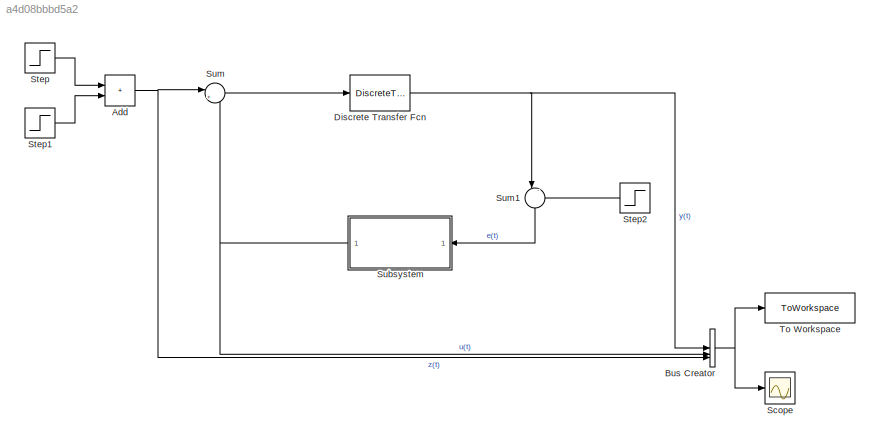
MODEL slx_a4d08bbbd5a2
KIND model
CONFIG AbsTol = auto
CONFIG EnableMultiTasking = off
CONFIG FixedStep = auto
CONFIG MaxStep = auto
CONFIG MinStep = auto
CONFIG RelTol = 1e-3
CONFIG SampleTimeConstraint = Unconstrained
CONFIG SolverName = VariableStepAuto
CONFIG StartTime = 0.0
CONFIG StopTime = 20.0
BLOCK [Sum] Add
  IconShape = rectangular
BLOCK [BusCreator] Bus Creator
  DisplayOption = bar
  InheritFromInputs = on
  Inputs = 3
BLOCK [DiscreteTransferFcn] Discrete Transfer Fcn
  Denominator = cell2mat(sys_d.Denominator)
  InputPortMap = u0
  Numerator = cell2mat(sys_d.Numerator)
BLOCK [Scope] Scope
  Floating = off
  NumInputPorts = 1
  ScopeSpecificationString = Simulink.scopes.TimeScopeBlockCfg('CurrentConfiguration', extmgr.ConfigurationSet(extmgr.Configuration('Core','General UI',true),extmgr.Configuration('Core','Source UI',true),extmgr.Configuration('Sources','WiredSimulink',true),extmgr.Configuration('Visuals','Time Domain',true,'SerializedDisplays',{struct('MinYLimReal','-0.38657','MaxYLimReal','3.4791','YLabelReal','','MinYLimMag','0.00000','MaxYL...<+1465ch>
BLOCK [Step] Step
  After = z * u_control
  SampleTime = 0
  Time = disorder_times(1)
BLOCK [Step] Step1
  After = -z * u_control
  SampleTime = 0
  Time = disorder_times(2)
BLOCK [Step] Step2
  After = u_control
  NameLocation = top
  SampleTime = 0
  Time = 0
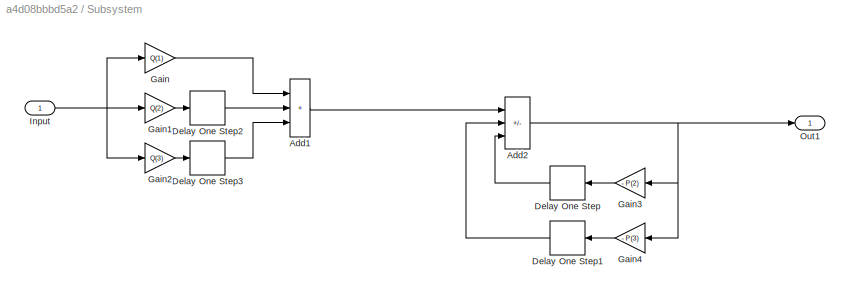
BLOCK [SubSystem] Subsystem
  NameLocation = top
BLOCK [Sum] Subsystem/Add1
  IconShape = rectangular
  Inputs = +++
BLOCK [Sum] Subsystem/Add2
  IconShape = rectangular
  Inputs = +--
BLOCK [Delay] Subsystem/Delay One Step
  DelayLength = 1
  InputPortMap = u0
  NameLocation = top
BLOCK [Delay] Subsystem/Delay One Step1
  InputPortMap = u0
  NameLocation = top
BLOCK [Delay] Subsystem/Delay One Step2
  DelayLength = 1
  InputPortMap = u0
BLOCK [Delay] Subsystem/Delay One Step3
  InputPortMap = u0
BLOCK [Gain] Subsystem/Gain
  Gain = Q(1)
BLOCK [Gain] Subsystem/Gain1
  Gain = Q(2)
BLOCK [Gain] Subsystem/Gain2
  Gain = Q(3)
BLOCK [Gain] Subsystem/Gain3
  Gain = - P(2)
  NameLocation = top
BLOCK [Gain] Subsystem/Gain4
  Gain = - P(3)
  NameLocation = top
BLOCK [Inport] Subsystem/Input
BLOCK [Outport] Subsystem/Out1
BLOCK [Sum] Sum
  Inputs = |++
BLOCK [Sum] Sum1
  Inputs = |-+
  NameLocation = left
BLOCK [ToWorkspace] To Workspace
  FixptAsFi = on
  MaxDataPoints = inf
  SampleTime = -1
  SaveFormat = Timeseries
  VariableName = simout
NET Add:1 -> Bus Creator:3, Sum:1
NET Bus Creator:1 -> Scope:1, To Workspace:1
NET Discrete Transfer Fcn:1 -> Bus Creator:1, Sum1:1
LINE Step1:1 -> Add:2
LINE Step2:1 -> Sum1:2
LINE Step:1 -> Add:1
LINE Subsystem/Add1:1 -> Subsystem/Add2:1
NET Subsystem/Add2:1 -> Subsystem/Gain3:1, Subsystem/Gain4:1, Subsystem/Out1:1
LINE Subsystem/Delay One Step1:1 -> Subsystem/Add2:2
LINE Subsystem/Delay One Step2:1 -> Subsystem/Add1:2
LINE Subsystem/Delay One Step3:1 -> Subsystem/Add1:3
LINE Subsystem/Delay One Step:1 -> Subsystem/Add2:3
LINE Subsystem/Gain1:1 -> Subsystem/Delay One Step2:1
LINE Subsystem/Gain2:1 -> Subsystem/Delay One Step3:1
LINE Subsystem/Gain3:1 -> Subsystem/Delay One Step:1
LINE Subsystem/Gain4:1 -> Subsystem/Delay One Step1:1
LINE Subsystem/Gain:1 -> Subsystem/Add1:1
NET Subsystem/Input:1 -> Subsystem/Gain1:1, Subsystem/Gain2:1, Subsystem/Gain:1
NET Subsystem:1 -> Bus Creator:2, Sum:2
LINE Sum1:1 -> Subsystem:1
LINE Sum:1 -> Discrete Transfer Fcn:1
note: NET lines group one-source signal fan-out (src -> all destinations, sorted); 1:1 wires keep LINE
